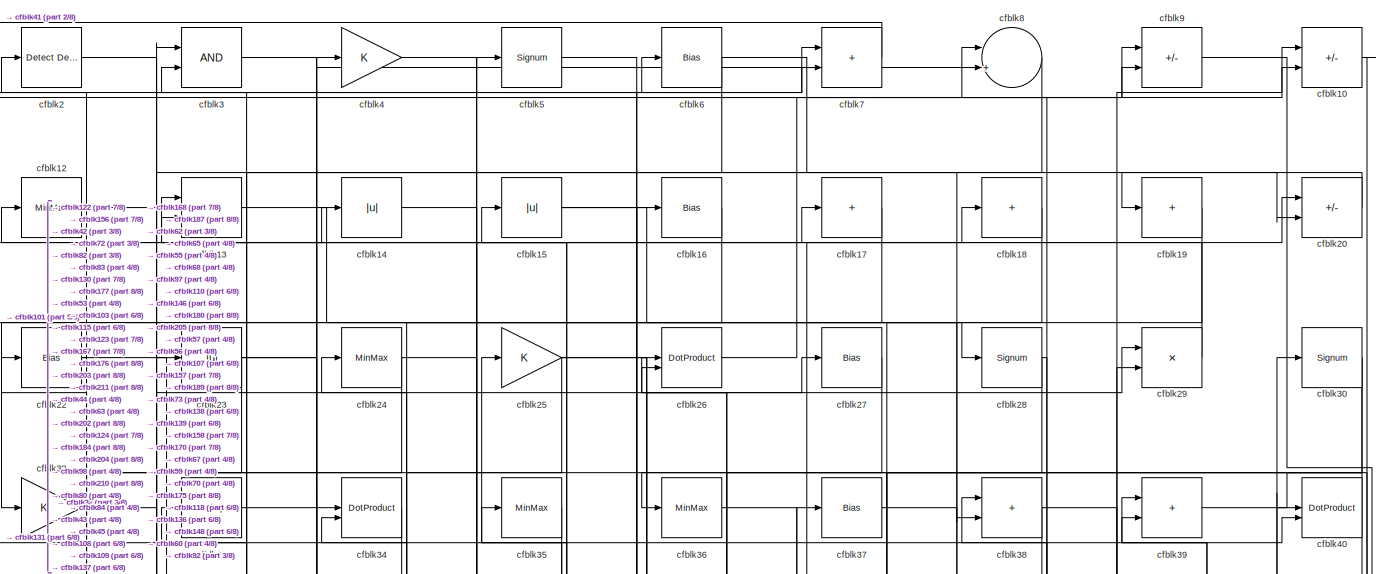
[diagram: root canvas - part 1/8, full width, top band]
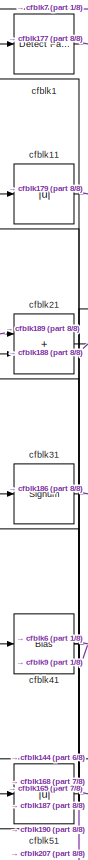
[diagram: root canvas - part 2/8, top left region]
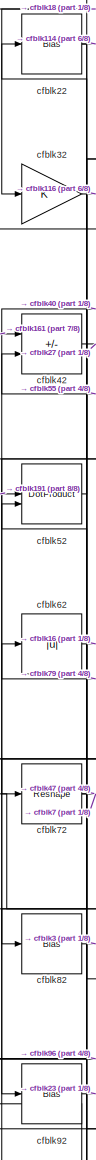
[diagram: root canvas - part 3/8, top left region]
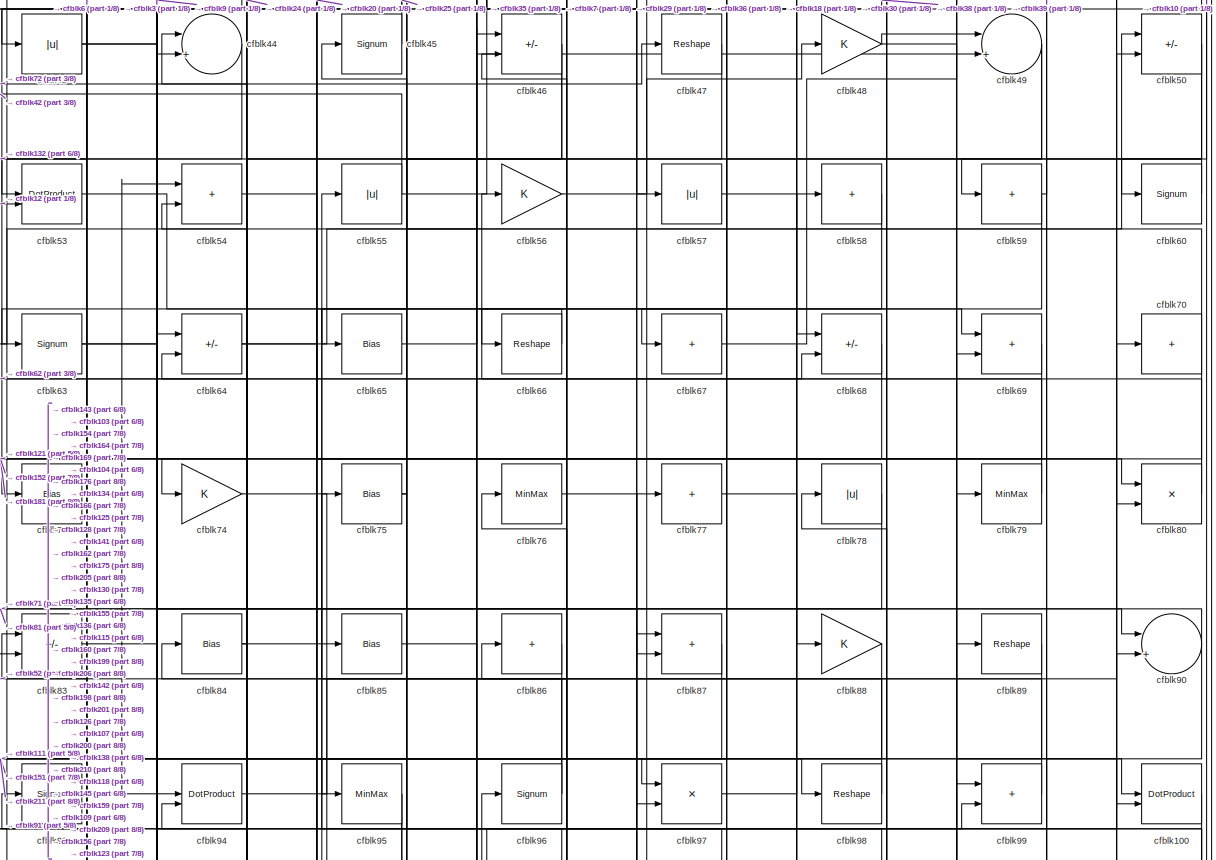
[diagram: root canvas - part 4/8, full width, top band]
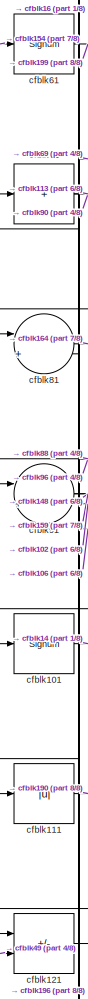
[diagram: root canvas - part 5/8, middle left region]
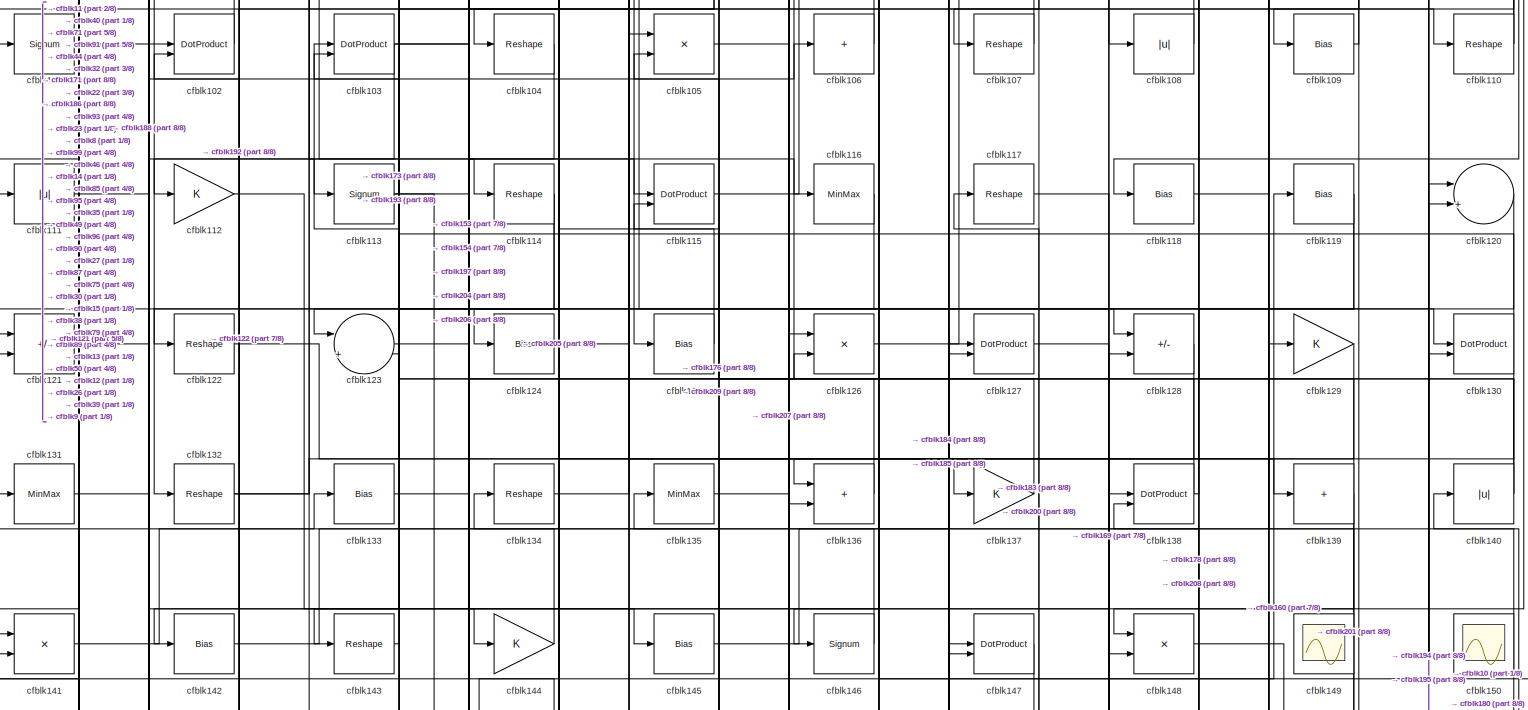
[diagram: root canvas - part 6/8, full width, middle band]
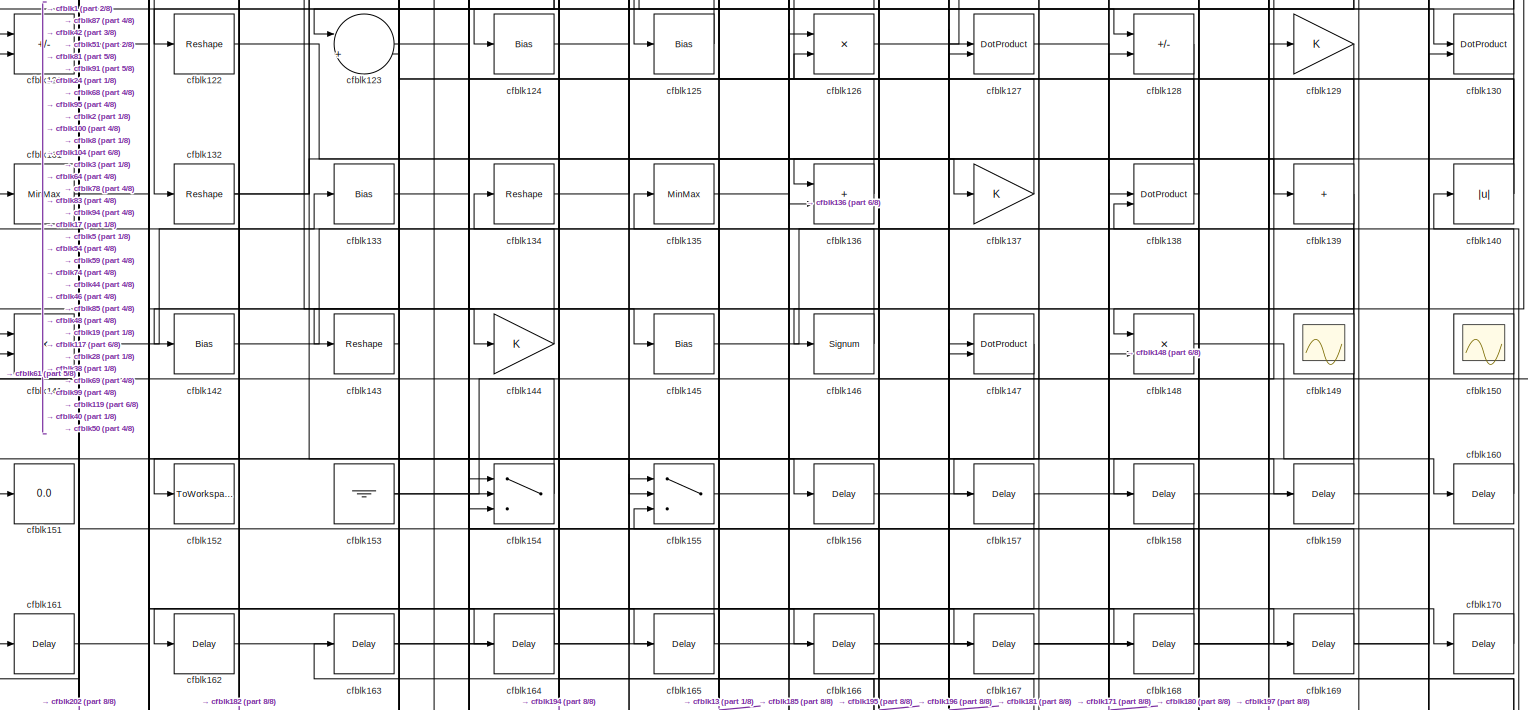
[diagram: root canvas - part 7/8, full width, middle band]
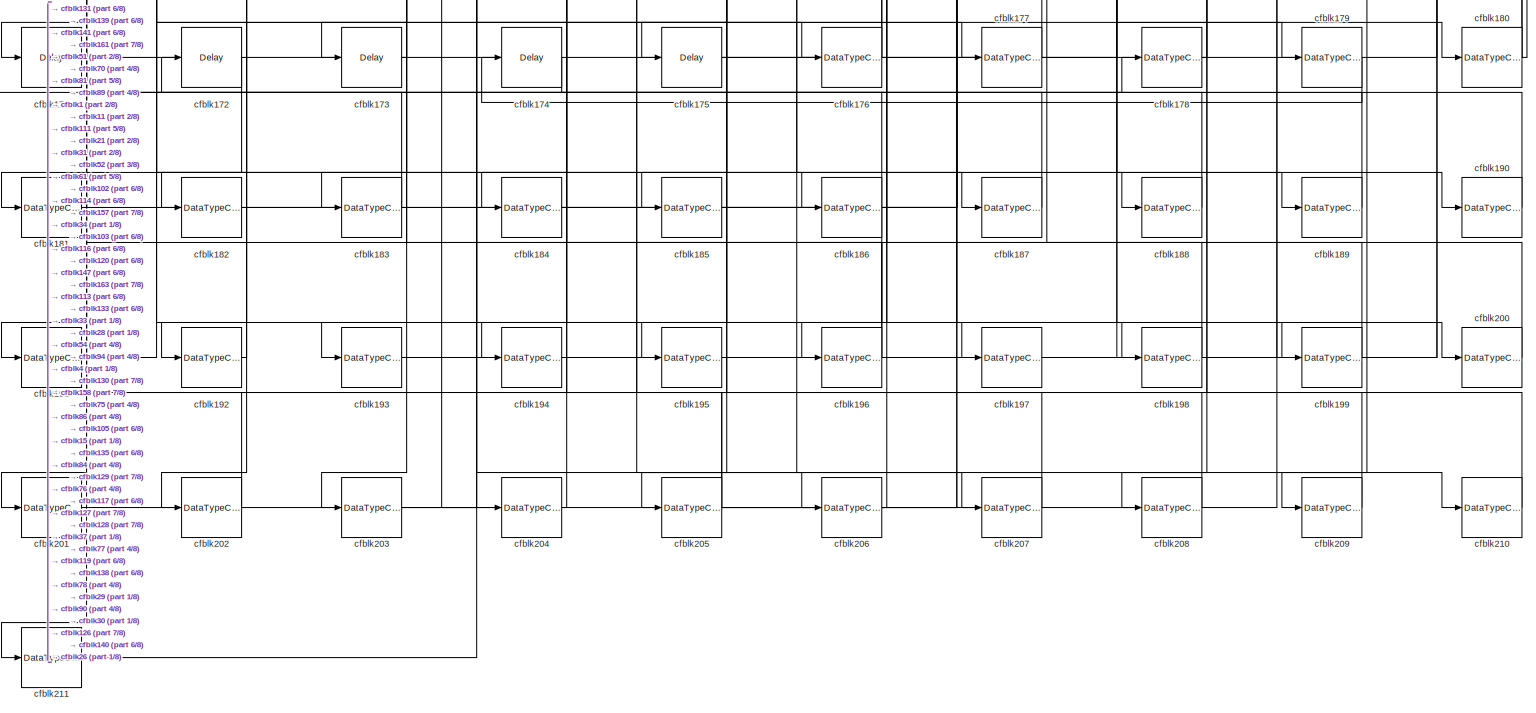
[diagram: root canvas - part 8/8, full width, bottom band]
MODEL slx_e215f78a7767
KIND model
CONFIG AbsTol = auto
CONFIG EnableMultiTasking = off
CONFIG FixedStep = auto
CONFIG MaxStep = auto
CONFIG MinStep = auto
CONFIG RelTol = 1e-3
CONFIG SampleTimeConstraint = Unconstrained
CONFIG SolverName = VariableStepAuto
CONFIG StartTime = 0.0
CONFIG StopTime = 10.0
BLOCK [Reference] cfblk1  REF=hdlsllib/Logic and Bit
Operations/Detect Fall
Nonpositive
  SourceBlock = hdlsllib/Logic and Bit\nOperations/Detect Fall\nNonpositive
  SourceType = Detect Fall Nonpositive
BLOCK [Sum] cfblk10
  IconShape = rectangular
  Inputs = +-
BLOCK [DotProduct] cfblk100
  OutDataTypeStr = Inherit: Inherit via internal rule
BLOCK [Signum] cfblk101
BLOCK [DotProduct] cfblk102
  OutDataTypeStr = Inherit: Inherit via internal rule
BLOCK [DotProduct] cfblk103
  OutDataTypeStr = Inherit: Inherit via internal rule
BLOCK [Reshape] cfblk104
BLOCK [Product] cfblk105
  Inputs = */
  RndMeth = Zero
  SaturateOnIntegerOverflow = on
BLOCK [Sum] cfblk106
  IconShape = rectangular
  Inputs = +
BLOCK [Reshape] cfblk107
BLOCK [Abs] cfblk108
  SaturateOnIntegerOverflow = off
BLOCK [Bias] cfblk109
  Bias = 0.0
  SaturateOnIntegerOverflow = off
BLOCK [Abs] cfblk11
  SaturateOnIntegerOverflow = off
BLOCK [Reshape] cfblk110
BLOCK [Abs] cfblk111
  SaturateOnIntegerOverflow = off
BLOCK [Gain] cfblk112
BLOCK [Signum] cfblk113
BLOCK [Reshape] cfblk114
BLOCK [DotProduct] cfblk115
  OutDataTypeStr = Inherit: Inherit via internal rule
BLOCK [MinMax] cfblk116
BLOCK [Reshape] cfblk117
BLOCK [Bias] cfblk118
  Bias = 0.0
  SaturateOnIntegerOverflow = off
BLOCK [Bias] cfblk119
  Bias = 0.0
  SaturateOnIntegerOverflow = off
BLOCK [MinMax] cfblk12
BLOCK [Sum] cfblk120
  Inputs = |++
BLOCK [Sum] cfblk121
  IconShape = rectangular
  Inputs = +-
BLOCK [Reshape] cfblk122
BLOCK [Sum] cfblk123
  Inputs = |++
BLOCK [Bias] cfblk124
  Bias = 0.0
  SaturateOnIntegerOverflow = off
BLOCK [Bias] cfblk125
  Bias = 0.0
  SaturateOnIntegerOverflow = off
BLOCK [Product] cfblk126
  Inputs = */
  RndMeth = Zero
  SaturateOnIntegerOverflow = on
BLOCK [DotProduct] cfblk127
  OutDataTypeStr = Inherit: Inherit via internal rule
BLOCK [Sum] cfblk128
  IconShape = rectangular
  Inputs = +-
BLOCK [Gain] cfblk129
BLOCK [Sum] cfblk13
  IconShape = rectangular
BLOCK [DotProduct] cfblk130
  OutDataTypeStr = Inherit: Inherit via internal rule
BLOCK [MinMax] cfblk131
BLOCK [Reshape] cfblk132
BLOCK [Bias] cfblk133
  Bias = 0.0
  SaturateOnIntegerOverflow = off
BLOCK [Reshape] cfblk134
BLOCK [MinMax] cfblk135
BLOCK [Sum] cfblk136
  IconShape = rectangular
BLOCK [Gain] cfblk137
BLOCK [DotProduct] cfblk138
  OutDataTypeStr = Inherit: Inherit via internal rule
BLOCK [Sum] cfblk139
  IconShape = rectangular
  Inputs = +
BLOCK [Abs] cfblk14
  SaturateOnIntegerOverflow = off
BLOCK [Abs] cfblk140
  SaturateOnIntegerOverflow = off
BLOCK [Product] cfblk141
  Inputs = */
  RndMeth = Zero
  SaturateOnIntegerOverflow = on
BLOCK [Bias] cfblk142
  Bias = 0.0
  SaturateOnIntegerOverflow = off
BLOCK [Reshape] cfblk143
BLOCK [Gain] cfblk144
BLOCK [Bias] cfblk145
  Bias = 0.0
  SaturateOnIntegerOverflow = off
BLOCK [Signum] cfblk146
BLOCK [DotProduct] cfblk147
  OutDataTypeStr = Inherit: Inherit via internal rule
BLOCK [Product] cfblk148
  Inputs = */
  RndMeth = Zero
  SaturateOnIntegerOverflow = on
BLOCK [Scope] cfblk149
  Floating = on
  NumInputPorts = 1
  ScopeSpecificationString = Simulink.scopes.TimeScopeBlockCfg('CurrentConfiguration', extmgr.ConfigurationSet(extmgr.Configuration('Core','General UI',true,'FigureColor',[0.156862745098039 0.156862745098039 0.156862745098039]),extmgr.Configuration('Core','Source UI',true),extmgr.Configuration('Sources','WiredSimulink',true,'DataLoggingVariableName','ScopeData1','DataLoggingSaveFormat','StructureWithTime','DataLoggingLimitDat...<+2713ch>
BLOCK [Abs] cfblk15
  SaturateOnIntegerOverflow = off
BLOCK [Scope] cfblk150
  Floating = on
  NumInputPorts = 1
  ScopeSpecificationString = Simulink.scopes.TimeScopeBlockCfg('CurrentConfiguration', extmgr.ConfigurationSet(extmgr.Configuration('Core','General UI',true,'FigureColor',[0.156862745098039 0.156862745098039 0.156862745098039]),extmgr.Configuration('Core','Source UI',true),extmgr.Configuration('Sources','WiredSimulink',true,'DataLoggingVariableName','ScopeData1','DataLoggingSaveFormat','StructureWithTime','DataLoggingLimitDat...<+2713ch>
BLOCK [Display] cfblk151
  Decimation = 1
BLOCK [ToWorkspace] cfblk152
  MaxDataPoints = inf
  SampleTime = -1
  SaveFormat = Timeseries
  VariableName = simout
BLOCK [Ground] cfblk153
BLOCK [Switch] cfblk154
  InputSameDT = off
  SaturateOnIntegerOverflow = off
BLOCK [Switch] cfblk155
  InputSameDT = off
  SaturateOnIntegerOverflow = off
BLOCK [Delay] cfblk156
  InputPortMap = u0
  SampleTime = 1
BLOCK [Delay] cfblk157
  InputPortMap = u0
  SampleTime = 1
BLOCK [Delay] cfblk158
  InputPortMap = u0
  SampleTime = 1
BLOCK [Delay] cfblk159
  InputPortMap = u0
  SampleTime = 1
BLOCK [Bias] cfblk16
  Bias = 0.0
  SaturateOnIntegerOverflow = off
BLOCK [Delay] cfblk160
  InputPortMap = u0
  SampleTime = 1
BLOCK [Delay] cfblk161
  InputPortMap = u0
  SampleTime = 1
BLOCK [Delay] cfblk162
  InputPortMap = u0
  SampleTime = 1
BLOCK [Delay] cfblk163
  InputPortMap = u0
  SampleTime = 1
BLOCK [Delay] cfblk164
  InputPortMap = u0
  SampleTime = 1
BLOCK [Delay] cfblk165
  InputPortMap = u0
  SampleTime = 1
BLOCK [Delay] cfblk166
  InputPortMap = u0
  SampleTime = 1
BLOCK [Delay] cfblk167
  InputPortMap = u0
  SampleTime = 1
BLOCK [Delay] cfblk168
  InputPortMap = u0
  SampleTime = 1
BLOCK [Delay] cfblk169
  InputPortMap = u0
  SampleTime = 1
BLOCK [Sum] cfblk17
  IconShape = rectangular
  Inputs = +
BLOCK [Delay] cfblk170
  InputPortMap = u0
  SampleTime = 1
BLOCK [Delay] cfblk171
  InputPortMap = u0
  SampleTime = 1
BLOCK [Delay] cfblk172
  InputPortMap = u0
  SampleTime = 1
BLOCK [Delay] cfblk173
  InputPortMap = u0
  SampleTime = 1
BLOCK [Delay] cfblk174
  InputPortMap = u0
  SampleTime = 1
BLOCK [Delay] cfblk175
  InputPortMap = u0
  SampleTime = 1
BLOCK [DataTypeConversion] cfblk176
  RndMeth = Floor
  SaturateOnIntegerOverflow = off
BLOCK [DataTypeConversion] cfblk177
  OutDataTypeStr = uint8
  RndMeth = Floor
  SaturateOnIntegerOverflow = off
BLOCK [DataTypeConversion] cfblk178
  OutDataTypeStr = uint8
  RndMeth = Floor
  SaturateOnIntegerOverflow = off
BLOCK [DataTypeConversion] cfblk179
  OutDataTypeStr = uint8
  RndMeth = Floor
  SaturateOnIntegerOverflow = off
BLOCK [Sum] cfblk18
  IconShape = rectangular
  Inputs = +
BLOCK [DataTypeConversion] cfblk180
  RndMeth = Floor
  SaturateOnIntegerOverflow = off
BLOCK [DataTypeConversion] cfblk181
  OutDataTypeStr = uint8
  RndMeth = Floor
  SaturateOnIntegerOverflow = off
BLOCK [DataTypeConversion] cfblk182
  OutDataTypeStr = uint8
  RndMeth = Floor
  SaturateOnIntegerOverflow = off
BLOCK [DataTypeConversion] cfblk183
  OutDataTypeStr = uint8
  RndMeth = Floor
  SaturateOnIntegerOverflow = off
BLOCK [DataTypeConversion] cfblk184
  OutDataTypeStr = uint8
  RndMeth = Floor
  SaturateOnIntegerOverflow = off
BLOCK [DataTypeConversion] cfblk185
  OutDataTypeStr = uint8
  RndMeth = Floor
  SaturateOnIntegerOverflow = off
BLOCK [DataTypeConversion] cfblk186
  RndMeth = Floor
  SaturateOnIntegerOverflow = off
BLOCK [DataTypeConversion] cfblk187
  OutDataTypeStr = uint8
  RndMeth = Floor
  SaturateOnIntegerOverflow = off
BLOCK [DataTypeConversion] cfblk188
  OutDataTypeStr = uint8
  RndMeth = Floor
  SaturateOnIntegerOverflow = off
BLOCK [DataTypeConversion] cfblk189
  OutDataTypeStr = uint8
  RndMeth = Floor
  SaturateOnIntegerOverflow = off
BLOCK [Sum] cfblk19
  IconShape = rectangular
  Inputs = +
BLOCK [DataTypeConversion] cfblk190
  OutDataTypeStr = uint8
  RndMeth = Floor
  SaturateOnIntegerOverflow = off
BLOCK [DataTypeConversion] cfblk191
  OutDataTypeStr = uint8
  RndMeth = Floor
  SaturateOnIntegerOverflow = off
BLOCK [DataTypeConversion] cfblk192
  OutDataTypeStr = uint8
  RndMeth = Floor
  SaturateOnIntegerOverflow = off
BLOCK [DataTypeConversion] cfblk193
  OutDataTypeStr = uint8
  RndMeth = Floor
  SaturateOnIntegerOverflow = off
BLOCK [DataTypeConversion] cfblk194
  OutDataTypeStr = uint8
  RndMeth = Floor
  SaturateOnIntegerOverflow = off
BLOCK [DataTypeConversion] cfblk195
  OutDataTypeStr = uint8
  RndMeth = Floor
  SaturateOnIntegerOverflow = off
BLOCK [DataTypeConversion] cfblk196
  RndMeth = Floor
  SaturateOnIntegerOverflow = off
BLOCK [DataTypeConversion] cfblk197
  OutDataTypeStr = uint8
  RndMeth = Floor
  SaturateOnIntegerOverflow = off
BLOCK [DataTypeConversion] cfblk198
  OutDataTypeStr = uint8
  RndMeth = Floor
  SaturateOnIntegerOverflow = off
BLOCK [DataTypeConversion] cfblk199
  OutDataTypeStr = uint8
  RndMeth = Floor
  SaturateOnIntegerOverflow = off
BLOCK [Reference] cfblk2  REF=simulink/Logic and Bit
Operations/Detect
Decrease
  LibrarySourceBlock = hdlsllib/Logic and Bit\nOperations/Detect\nDecrease
  SourceBlock = simulink/Logic and Bit\nOperations/Detect\nDecrease
  SourceType = Detect Decrease
BLOCK [Sum] cfblk20
  IconShape = rectangular
  Inputs = +-
BLOCK [DataTypeConversion] cfblk200
  OutDataTypeStr = uint8
  RndMeth = Floor
  SaturateOnIntegerOverflow = off
BLOCK [DataTypeConversion] cfblk201
  OutDataTypeStr = uint8
  RndMeth = Floor
  SaturateOnIntegerOverflow = off
BLOCK [DataTypeConversion] cfblk202
  OutDataTypeStr = uint8
  RndMeth = Floor
  SaturateOnIntegerOverflow = off
BLOCK [DataTypeConversion] cfblk203
  OutDataTypeStr = uint8
  RndMeth = Floor
  SaturateOnIntegerOverflow = off
BLOCK [DataTypeConversion] cfblk204
  OutDataTypeStr = uint8
  RndMeth = Floor
  SaturateOnIntegerOverflow = off
BLOCK [DataTypeConversion] cfblk205
  RndMeth = Floor
  SaturateOnIntegerOverflow = off
BLOCK [DataTypeConversion] cfblk206
  OutDataTypeStr = uint8
  RndMeth = Floor
  SaturateOnIntegerOverflow = off
BLOCK [DataTypeConversion] cfblk207
  OutDataTypeStr = uint8
  RndMeth = Floor
  SaturateOnIntegerOverflow = off
BLOCK [DataTypeConversion] cfblk208
  OutDataTypeStr = uint8
  RndMeth = Floor
  SaturateOnIntegerOverflow = off
BLOCK [DataTypeConversion] cfblk209
  OutDataTypeStr = uint8
  RndMeth = Floor
  SaturateOnIntegerOverflow = off
BLOCK [Sum] cfblk21
  IconShape = rectangular
BLOCK [DataTypeConversion] cfblk210
  OutDataTypeStr = uint8
  RndMeth = Floor
  SaturateOnIntegerOverflow = off
BLOCK [DataTypeConversion] cfblk211
  OutDataTypeStr = uint8
  RndMeth = Floor
  SaturateOnIntegerOverflow = off
BLOCK [Bias] cfblk22
  Bias = 0.0
  SaturateOnIntegerOverflow = off
BLOCK [Abs] cfblk23
  SaturateOnIntegerOverflow = off
BLOCK [MinMax] cfblk24
BLOCK [Gain] cfblk25
BLOCK [DotProduct] cfblk26
  OutDataTypeStr = Inherit: Inherit via internal rule
BLOCK [Bias] cfblk27
  Bias = 0.0
  SaturateOnIntegerOverflow = off
BLOCK [Signum] cfblk28
BLOCK [Product] cfblk29
  Inputs = */
  RndMeth = Zero
  SaturateOnIntegerOverflow = on
BLOCK [Logic] cfblk3
  AllPortsSameDT = off
  OutDataTypeStr = boolean
BLOCK [Signum] cfblk30
BLOCK [Signum] cfblk31
BLOCK [Gain] cfblk32
BLOCK [Reshape] cfblk33
BLOCK [DotProduct] cfblk34
  OutDataTypeStr = Inherit: Inherit via internal rule
BLOCK [MinMax] cfblk35
BLOCK [MinMax] cfblk36
BLOCK [Bias] cfblk37
  Bias = 0.0
  SaturateOnIntegerOverflow = off
BLOCK [Sum] cfblk38
  IconShape = rectangular
BLOCK [Sum] cfblk39
  IconShape = rectangular
BLOCK [Gain] cfblk4
BLOCK [DotProduct] cfblk40
  OutDataTypeStr = Inherit: Inherit via internal rule
BLOCK [Bias] cfblk41
  Bias = 0.0
  SaturateOnIntegerOverflow = off
BLOCK [Sum] cfblk42
  IconShape = rectangular
  Inputs = +-
BLOCK [Abs] cfblk43
  SaturateOnIntegerOverflow = off
BLOCK [Sum] cfblk44
  Inputs = |++
BLOCK [Signum] cfblk45
BLOCK [Sum] cfblk46
  IconShape = rectangular
  Inputs = +-
BLOCK [Reshape] cfblk47
BLOCK [Gain] cfblk48
BLOCK [Sum] cfblk49
  Inputs = |++
BLOCK [Signum] cfblk5
BLOCK [Sum] cfblk50
  IconShape = rectangular
  Inputs = +-
BLOCK [Abs] cfblk51
  SaturateOnIntegerOverflow = off
BLOCK [DotProduct] cfblk52
  OutDataTypeStr = Inherit: Inherit via internal rule
BLOCK [DotProduct] cfblk53
  OutDataTypeStr = Inherit: Inherit via internal rule
BLOCK [Sum] cfblk54
  IconShape = rectangular
BLOCK [Abs] cfblk55
  SaturateOnIntegerOverflow = off
BLOCK [Gain] cfblk56
BLOCK [Abs] cfblk57
  SaturateOnIntegerOverflow = off
BLOCK [Sum] cfblk58
  IconShape = rectangular
  Inputs = +
BLOCK [Sum] cfblk59
  IconShape = rectangular
  Inputs = +
BLOCK [Bias] cfblk6
  Bias = 0.0
  SaturateOnIntegerOverflow = off
BLOCK [Signum] cfblk60
BLOCK [Signum] cfblk61
BLOCK [Abs] cfblk62
  SaturateOnIntegerOverflow = off
BLOCK [Signum] cfblk63
BLOCK [Sum] cfblk64
  IconShape = rectangular
  Inputs = +-
BLOCK [Bias] cfblk65
  Bias = 0.0
  SaturateOnIntegerOverflow = off
BLOCK [Reshape] cfblk66
BLOCK [Sum] cfblk67
  IconShape = rectangular
  Inputs = +
BLOCK [Sum] cfblk68
  IconShape = rectangular
  Inputs = +-
BLOCK [Sum] cfblk69
  IconShape = rectangular
BLOCK [Sum] cfblk7
  IconShape = rectangular
BLOCK [Sum] cfblk70
  IconShape = rectangular
  Inputs = +
BLOCK [Sum] cfblk71
  IconShape = rectangular
  Inputs = +
BLOCK [Reshape] cfblk72
BLOCK [Bias] cfblk73
  Bias = 0.0
  SaturateOnIntegerOverflow = off
BLOCK [Gain] cfblk74
BLOCK [Bias] cfblk75
  Bias = 0.0
  SaturateOnIntegerOverflow = off
BLOCK [MinMax] cfblk76
BLOCK [Sum] cfblk77
  IconShape = rectangular
  Inputs = +
BLOCK [Abs] cfblk78
  SaturateOnIntegerOverflow = off
BLOCK [MinMax] cfblk79
BLOCK [Sum] cfblk8
  Inputs = |++
BLOCK [Product] cfblk80
  Inputs = */
  RndMeth = Zero
  SaturateOnIntegerOverflow = on
BLOCK [Sum] cfblk81
  Inputs = |++
BLOCK [Bias] cfblk82
  Bias = 0.0
  SaturateOnIntegerOverflow = off
BLOCK [Sum] cfblk83
  IconShape = rectangular
  Inputs = +-
BLOCK [Bias] cfblk84
  Bias = 0.0
  SaturateOnIntegerOverflow = off
BLOCK [Bias] cfblk85
  Bias = 0.0
  SaturateOnIntegerOverflow = off
BLOCK [Sum] cfblk86
  IconShape = rectangular
  Inputs = +
BLOCK [Sum] cfblk87
  IconShape = rectangular
BLOCK [Gain] cfblk88
BLOCK [Reshape] cfblk89
BLOCK [Sum] cfblk9
  IconShape = rectangular
  Inputs = +-
BLOCK [Sum] cfblk90
  Inputs = |++
BLOCK [Sum] cfblk91
  Inputs = |++
BLOCK [Bias] cfblk92
  Bias = 0.0
  SaturateOnIntegerOverflow = off
BLOCK [Signum] cfblk93
BLOCK [DotProduct] cfblk94
  OutDataTypeStr = Inherit: Inherit via internal rule
BLOCK [MinMax] cfblk95
BLOCK [Signum] cfblk96
BLOCK [Product] cfblk97
  Inputs = */
  RndMeth = Zero
  SaturateOnIntegerOverflow = on
BLOCK [Reshape] cfblk98
BLOCK [Sum] cfblk99
  IconShape = rectangular
LINE cfblk100:1 -> cfblk123:1
LINE cfblk101:1 -> cfblk14:1
LINE cfblk102:1 -> cfblk91:2
NET cfblk103:1 -> cfblk112:1, cfblk8:2, cfblk99:2
LINE cfblk104:1 -> cfblk154:2
LINE cfblk105:1 -> cfblk207:1
LINE cfblk106:1 -> cfblk71:1
LINE cfblk107:1 -> cfblk75:1
LINE cfblk108:1 -> cfblk15:1
LINE cfblk109:1 -> cfblk13:1
NET cfblk10:1 -> cfblk136:1, cfblk60:1
NET cfblk110:1 -> cfblk12:1, cfblk26:1
LINE cfblk111:1 -> cfblk190:1
LINE cfblk112:1 -> cfblk144:1
NET cfblk113:1 -> cfblk204:1, cfblk206:1
NET cfblk114:1 -> cfblk171:1, cfblk192:1
LINE cfblk115:1 -> cfblk90:2
LINE cfblk116:1 -> cfblk173:1
LINE cfblk117:1 -> cfblk169:1
LINE cfblk118:1 -> cfblk79:1
NET cfblk119:1 -> cfblk143:1, cfblk208:1
LINE cfblk11:1 -> cfblk179:1
LINE cfblk120:1 -> cfblk193:1
LINE cfblk121:1 -> cfblk106:1
LINE cfblk122:1 -> cfblk136:2
LINE cfblk123:1 -> cfblk17:1
LINE cfblk124:1 -> cfblk5:1
LINE cfblk125:1 -> cfblk44:1
LINE cfblk126:1 -> cfblk48:1
LINE cfblk127:1 -> cfblk180:1
LINE cfblk128:1 -> cfblk194:1
LINE cfblk129:1 -> cfblk196:1
LINE cfblk12:1 -> cfblk53:2
NET cfblk130:1 -> cfblk13:2, cfblk185:1
LINE cfblk131:1 -> cfblk40:2
NET cfblk132:1 -> cfblk139:1, cfblk68:2
LINE cfblk133:1 -> cfblk197:1
LINE cfblk134:1 -> cfblk85:1
LINE cfblk135:1 -> cfblk49:2
LINE cfblk136:1 -> cfblk96:1
LINE cfblk137:1 -> cfblk35:1
NET cfblk138:1 -> cfblk38:1, cfblk83:1
NET cfblk139:1 -> cfblk142:1, cfblk201:1, cfblk8:1
LINE cfblk13:1 -> cfblk108:1
NET cfblk140:1 -> cfblk103:1, cfblk115:2
LINE cfblk141:1 -> cfblk133:1
LINE cfblk142:1 -> cfblk87:1
LINE cfblk143:1 -> cfblk93:1
LINE cfblk144:1 -> cfblk11:1
LINE cfblk145:1 -> cfblk89:1
LINE cfblk146:1 -> cfblk134:1
LINE cfblk147:1 -> cfblk183:1
LINE cfblk148:1 -> cfblk160:1
LINE cfblk14:1 -> cfblk137:1
NET cfblk153:1 -> cfblk119:1, cfblk126:2
LINE cfblk154:1 -> cfblk61:1
LINE cfblk155:1 -> cfblk46:1
LINE cfblk156:1 -> cfblk50:2
LINE cfblk157:1 -> cfblk182:1
LINE cfblk158:1 -> cfblk195:1
LINE cfblk159:1 -> cfblk99:1
NET cfblk15:1 -> cfblk187:1, cfblk28:1
LINE cfblk160:1 -> cfblk46:2
LINE cfblk161:1 -> cfblk42:1
LINE cfblk162:1 -> cfblk155:1
LINE cfblk163:1 -> cfblk130:2
LINE cfblk164:1 -> cfblk64:1
LINE cfblk165:1 -> cfblk154:1
LINE cfblk166:1 -> cfblk69:2
LINE cfblk167:1 -> cfblk40:1
LINE cfblk168:1 -> cfblk1:1
LINE cfblk169:1 -> cfblk94:1
LINE cfblk16:1 -> cfblk101:1
LINE cfblk170:1 -> cfblk155:3
LINE cfblk171:1 -> cfblk128:2
LINE cfblk172:1 -> cfblk191:1
LINE cfblk173:1 -> cfblk103:2
LINE cfblk174:1 -> cfblk178:1
LINE cfblk175:1 -> cfblk30:1
NET cfblk176:1 -> cfblk135:1, cfblk84:1
LINE cfblk177:1 -> cfblk33:1
LINE cfblk178:1 -> cfblk138:2
LINE cfblk179:1 -> cfblk174:1
LINE cfblk17:1 -> cfblk124:1
NET cfblk180:1 -> cfblk126:1, cfblk140:1, cfblk26:2
LINE cfblk181:1 -> cfblk127:1
LINE cfblk182:1 -> cfblk127:2
LINE cfblk183:1 -> cfblk102:2
LINE cfblk184:1 -> cfblk147:1
LINE cfblk185:1 -> cfblk147:2
NET cfblk186:1 -> cfblk131:1, cfblk203:1
LINE cfblk187:1 -> cfblk31:1
LINE cfblk188:1 -> cfblk102:1
LINE cfblk189:1 -> cfblk21:1
LINE cfblk18:1 -> cfblk32:1
LINE cfblk190:1 -> cfblk21:2
LINE cfblk191:1 -> cfblk52:1
LINE cfblk192:1 -> cfblk172:1
LINE cfblk193:1 -> cfblk138:1
LINE cfblk194:1 -> cfblk120:1
LINE cfblk195:1 -> cfblk120:2
NET cfblk196:1 -> cfblk163:1, cfblk81:2
LINE cfblk197:1 -> cfblk129:1
LINE cfblk198:1 -> cfblk94:2
LINE cfblk199:1 -> cfblk76:1
LINE cfblk19:1 -> cfblk157:1
LINE cfblk1:1 -> cfblk177:1
LINE cfblk200:1 -> cfblk117:1
LINE cfblk201:1 -> cfblk77:1
LINE cfblk202:1 -> cfblk161:1
LINE cfblk203:1 -> cfblk34:1
LINE cfblk204:1 -> cfblk34:2
NET cfblk205:1 -> cfblk141:2, cfblk29:2, cfblk37:1, cfblk54:2
LINE cfblk206:1 -> cfblk86:1
LINE cfblk207:1 -> cfblk51:1
LINE cfblk208:1 -> cfblk105:1
LINE cfblk209:1 -> cfblk105:2
LINE cfblk20:1 -> cfblk19:1
LINE cfblk210:1 -> cfblk78:1
LINE cfblk211:1 -> cfblk4:1
LINE cfblk21:1 -> cfblk188:1
NET cfblk22:1 -> cfblk114:1, cfblk82:1
NET cfblk23:1 -> cfblk110:1, cfblk115:1, cfblk72:1
NET cfblk24:1 -> cfblk122:1, cfblk80:1
NET cfblk25:1 -> cfblk68:1, cfblk83:2, cfblk97:2
LINE cfblk26:1 -> cfblk10:2
LINE cfblk27:1 -> cfblk146:1
NET cfblk28:1 -> cfblk158:1, cfblk184:1
LINE cfblk29:1 -> cfblk2:1
NET cfblk2:1 -> cfblk156:1, cfblk20:2
NET cfblk30:1 -> cfblk107:1, cfblk67:1
LINE cfblk31:1 -> cfblk186:1
LINE cfblk32:1 -> cfblk116:1
LINE cfblk33:1 -> cfblk176:1
LINE cfblk34:1 -> cfblk202:1
LINE cfblk35:1 -> cfblk43:1
LINE cfblk36:1 -> cfblk57:1
LINE cfblk37:1 -> cfblk189:1
NET cfblk38:1 -> cfblk170:1, cfblk73:1
LINE cfblk39:1 -> cfblk118:1
NET cfblk3:1 -> cfblk167:1, cfblk44:2
NET cfblk40:1 -> cfblk36:1, cfblk92:1
NET cfblk41:1 -> cfblk6:1, cfblk9:2
LINE cfblk42:1 -> cfblk27:1
NET cfblk43:1 -> cfblk100:1, cfblk98:1
LINE cfblk44:1 -> cfblk132:1
LINE cfblk45:1 -> cfblk25:1
NET cfblk46:1 -> cfblk104:1, cfblk65:1
LINE cfblk47:1 -> cfblk95:1
NET cfblk48:1 -> cfblk100:2, cfblk49:1
NET cfblk49:1 -> cfblk121:2, cfblk97:1
LINE cfblk4:1 -> cfblk210:1
NET cfblk50:1 -> cfblk109:1, cfblk74:1
LINE cfblk51:1 -> cfblk165:1
LINE cfblk52:1 -> cfblk22:1
LINE cfblk53:1 -> cfblk69:1
LINE cfblk54:1 -> cfblk166:1
NET cfblk55:1 -> cfblk29:1, cfblk42:2
LINE cfblk56:1 -> cfblk18:1
LINE cfblk57:1 -> cfblk88:1
LINE cfblk58:1 -> cfblk66:1
NET cfblk59:1 -> cfblk125:1, cfblk39:1
LINE cfblk5:1 -> cfblk168:1
LINE cfblk60:1 -> cfblk59:1
LINE cfblk61:1 -> cfblk199:1
LINE cfblk62:1 -> cfblk16:1
NET cfblk63:1 -> cfblk87:2, cfblk9:1
NET cfblk64:1 -> cfblk50:1, cfblk80:2
LINE cfblk65:1 -> cfblk7:1
LINE cfblk66:1 -> cfblk63:1
LINE cfblk67:1 -> cfblk10:1
LINE cfblk68:1 -> cfblk152:1
LINE cfblk69:1 -> cfblk121:1
NET cfblk6:1 -> cfblk38:2, cfblk53:1
NET cfblk70:1 -> cfblk181:1, cfblk39:2
NET cfblk71:1 -> cfblk113:1, cfblk90:1
NET cfblk72:1 -> cfblk47:1, cfblk7:2
LINE cfblk73:1 -> cfblk3:2
LINE cfblk74:1 -> cfblk128:1
NET cfblk75:1 -> cfblk175:1, cfblk45:1
LINE cfblk76:1 -> cfblk198:1
LINE cfblk77:1 -> cfblk200:1
LINE cfblk78:1 -> cfblk154:3
LINE cfblk79:1 -> cfblk62:1
LINE cfblk7:1 -> cfblk41:1
LINE cfblk80:1 -> cfblk56:1
LINE cfblk81:1 -> cfblk164:1
LINE cfblk82:1 -> cfblk3:1
LINE cfblk83:1 -> cfblk155:2
NET cfblk84:1 -> cfblk20:1, cfblk64:2
LINE cfblk85:1 -> cfblk130:1
LINE cfblk86:1 -> cfblk205:1
LINE cfblk87:1 -> cfblk151:1
LINE cfblk88:1 -> cfblk111:1
LINE cfblk89:1 -> cfblk211:1
LINE cfblk8:1 -> cfblk123:2
NET cfblk90:1 -> cfblk209:1, cfblk81:1
NET cfblk91:1 -> cfblk148:2, cfblk159:1
LINE cfblk92:1 -> cfblk23:1
NET cfblk93:1 -> cfblk145:1, cfblk54:1
LINE cfblk94:1 -> cfblk70:1
NET cfblk95:1 -> cfblk141:1, cfblk162:1
NET cfblk96:1 -> cfblk52:2, cfblk91:1
LINE cfblk97:1 -> cfblk58:1
LINE cfblk98:1 -> cfblk24:1
LINE cfblk99:1 -> cfblk55:1
LINE cfblk9:1 -> cfblk148:1
note: NET lines group one-source signal fan-out (src -> all destinations, sorted); 1:1 wires keep LINE
